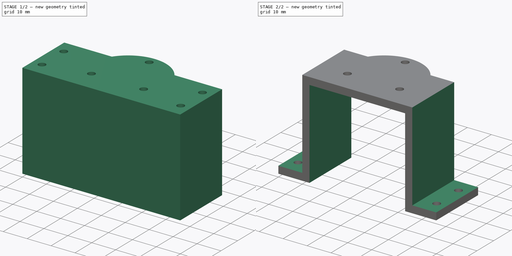
[diagram: build sequence overview — one tinted view per stage of 2, left to right]
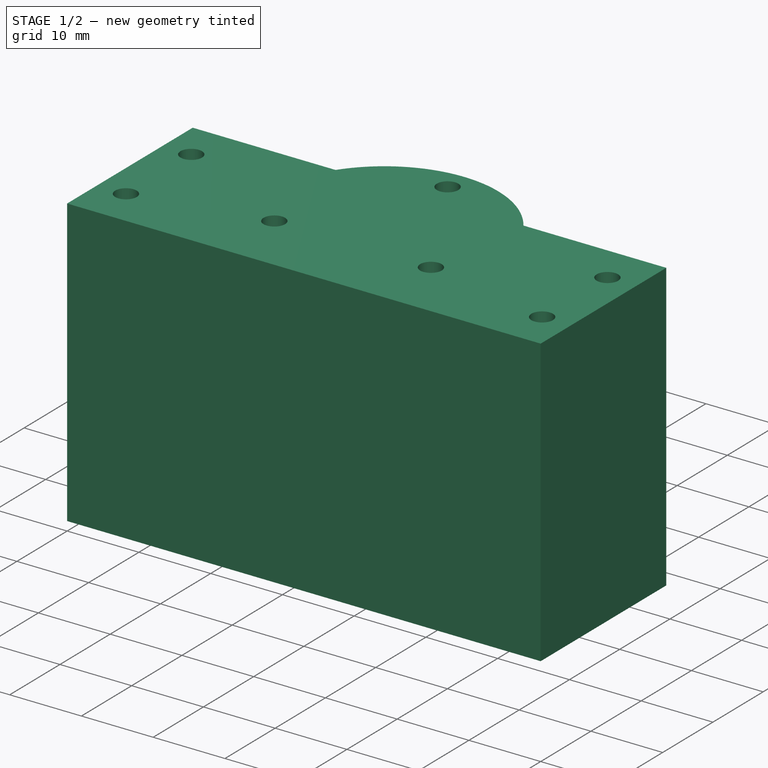
[diagram: stage 1 of 2 — iso view after this stage's code; geometry added in this stage tinted green]
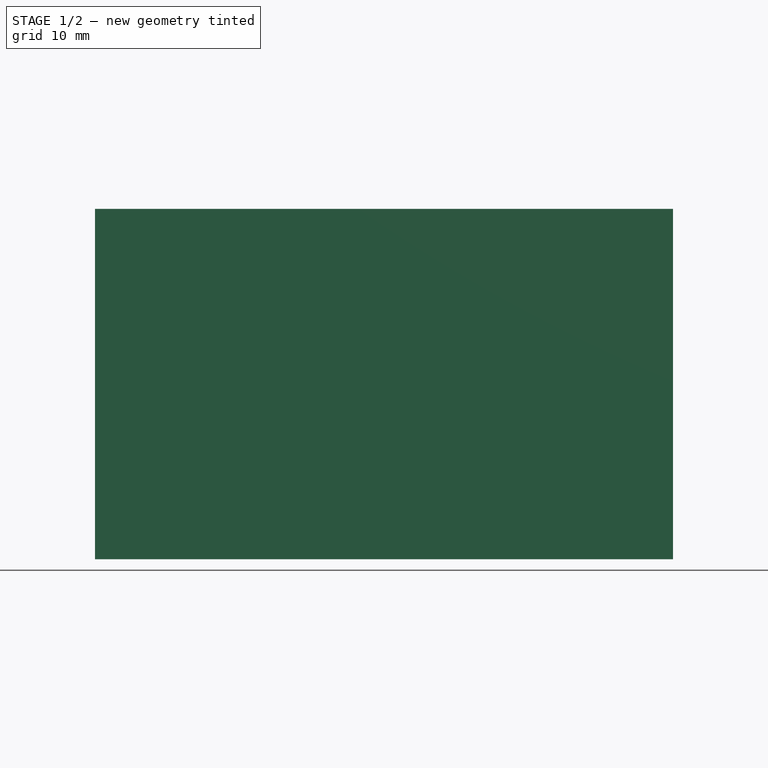
[diagram: stage 1 of 2 — front view after this stage's code; geometry added in this stage tinted green]
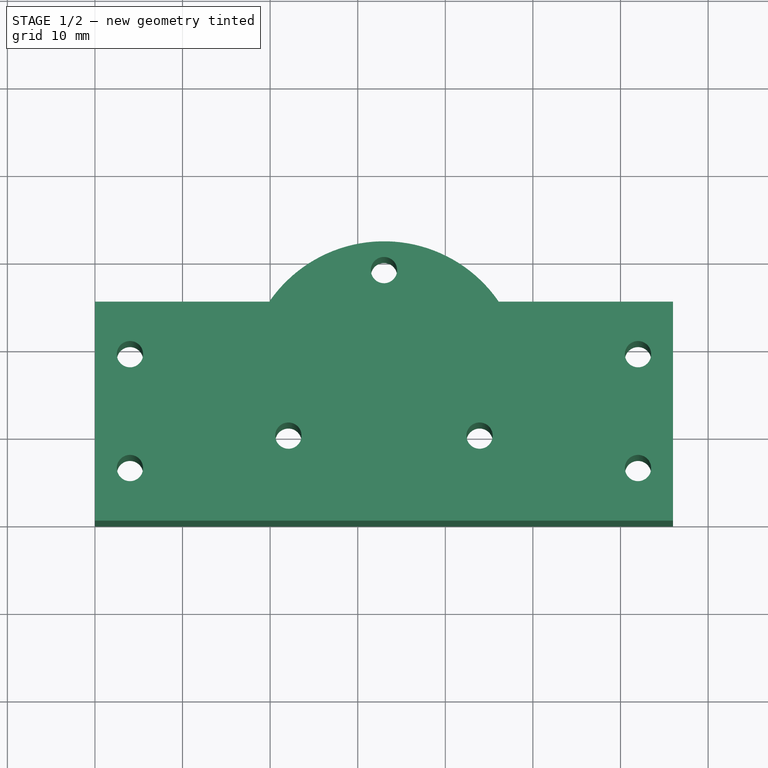
[diagram: stage 1 of 2 — top view after this stage's code; geometry added in this stage tinted green]
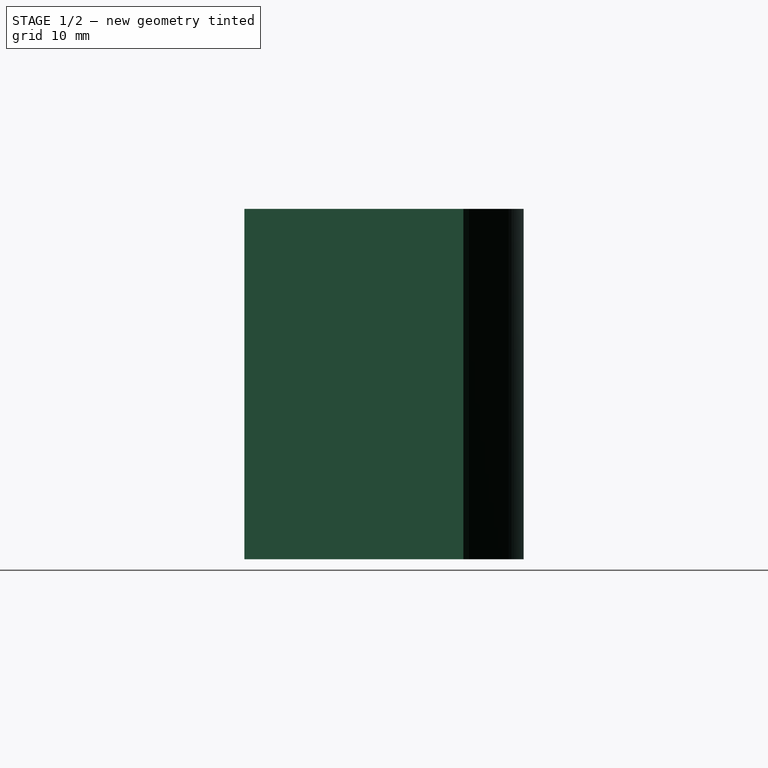
[diagram: stage 1 of 2 — right view after this stage's code; geometry added in this stage tinted green]
FCSTD DOCUMENT  (FreeCAD 0.16R6707 (Git))
Label: support_ressort
License: All rights reserved
LicenseURL: http://en.wikipedia.org/wiki/All_rights_reserved
objects: Sketcher::SketchObject×2, PartDesign::Pad×1, PartDesign::Pocket×1
note: 6 computed .brp shape members not serialized (recipe doc carries the construction recipe); baked Part::Feature solids carry a one-line shape summary decoded from their .brp

FEATURE [Sketcher::SketchObject] Sketch
  sketch-geometry (21):
    g0: GeomPoint [constr] X=0 Y=25 Z=0
    g1: GeomPoint [constr] X=66 Y=0 Z=0
    g2: GeomPoint [constr] X=66 Y=25 Z=0
    g3: GeomPoint [constr] X=33 Y=16 Z=0
    g4: Circle CenterX=33 CenterY=28.6 CenterZ=0 NormalX=0 NormalY=0 NormalZ=1 Radius=1.5
    g5: Circle CenterX=43.9119 CenterY=9.7 CenterZ=0 NormalX=0 NormalY=0 NormalZ=1 Radius=1.5
    g6: Circle CenterX=22.0881 CenterY=9.7 CenterZ=0 NormalX=0 NormalY=0 NormalZ=1 Radius=1.5
    g7: LineSegment StartX=0 StartY=25 StartZ=0 EndX=19.9057 EndY=25 EndZ=0
    g8: LineSegment StartX=66 StartY=25 StartZ=0 EndX=46.0943 EndY=25 EndZ=0
    g9: ArcOfCircle CenterX=33 CenterY=16 CenterZ=0 NormalX=0 NormalY=0 NormalZ=1 Radius=15.889 StartAngle=0.602166 EndAngle=2.53943
    g10: LineSegment StartX=0 StartY=25 StartZ=0 EndX=0 EndY=0 EndZ=0
    g11: LineSegment StartX=0 StartY=0 StartZ=0 EndX=66 EndY=0 EndZ=0
    g12: LineSegment StartX=66 StartY=0 StartZ=0 EndX=66 EndY=25 EndZ=0
    g13: GeomPoint [constr] X=4 Y=19 Z=0
    g14: GeomPoint [constr] X=4 Y=6 Z=0
    g15: GeomPoint [constr] X=62 Y=19 Z=0
    g16: GeomPoint [constr] X=62 Y=6 Z=0
    g17: Circle CenterX=4 CenterY=19 CenterZ=0 NormalX=0 NormalY=0 NormalZ=1 Radius=1.5
    g18: Circle CenterX=4 CenterY=6 CenterZ=0 NormalX=0 NormalY=0 NormalZ=1 Radius=1.5
    g19: Circle CenterX=62 CenterY=19 CenterZ=0 NormalX=0 NormalY=0 NormalZ=1 Radius=1.5
    g20: Circle CenterX=62 CenterY=6 CenterZ=0 NormalX=0 NormalY=0 NormalZ=1 Radius=1.5
  constraints (40):
    c: PointOnObject(g0,g-2)
    c: PointOnObject(g1,g-1)
    c: DistanceY(g2,g0) = 0
    c: DistanceX(g2,g1) = 0
    c: DistanceY(g0) = 25
    c: DistanceX(g-1,g1) = 66
    c: DistanceX(g3) = 33
    c: DistanceY(g3) = 16
    c: Radius(g6) = 1.5
    c: Equal(g6,g4)
    c: Equal(g6,g5)
    c: Coincident(g7,g0)
    c: Horizontal(g7)
    c: Coincident(g8,g2)
    c: Horizontal(g8)
    c: Coincident(g9,g3)
    c: Coincident(g9,g8)
    c: Coincident(g9,g7)
    c: Coincident(g10,g0)
    c: Coincident(g10,g-1)
    c: Coincident(g11,g-1)
    c: Coincident(g11,g1)
    c: Coincident(g12,g1)
    c: Coincident(g12,g2)
    c: DistanceY(g13,g0) = 6
    c: DistanceY(g14) = 6
    c: DistanceX(g13) = 4
    c: DistanceX(g14) = 4
    c: DistanceY(g15,g2) = 6
    c: DistanceY(g16) = 6
    c: DistanceX(g16,g1) = 4
    c: DistanceX(g15,g2) = 4
    c: Coincident(g17,g13)
    c: Coincident(g18,g14)
    c: Coincident(g19,g15)
    c: Coincident(g20,g16)
    c: Radius(g19) = 1.5
    c: Equal(g19,g20)
    c: Equal(g19,g18)
    c: Equal(g19,g17)
FEATURE [PartDesign::Pad] Pad
  Length = 40
  Length2 = 100
  Sketch = -> Sketch
  Type = 0
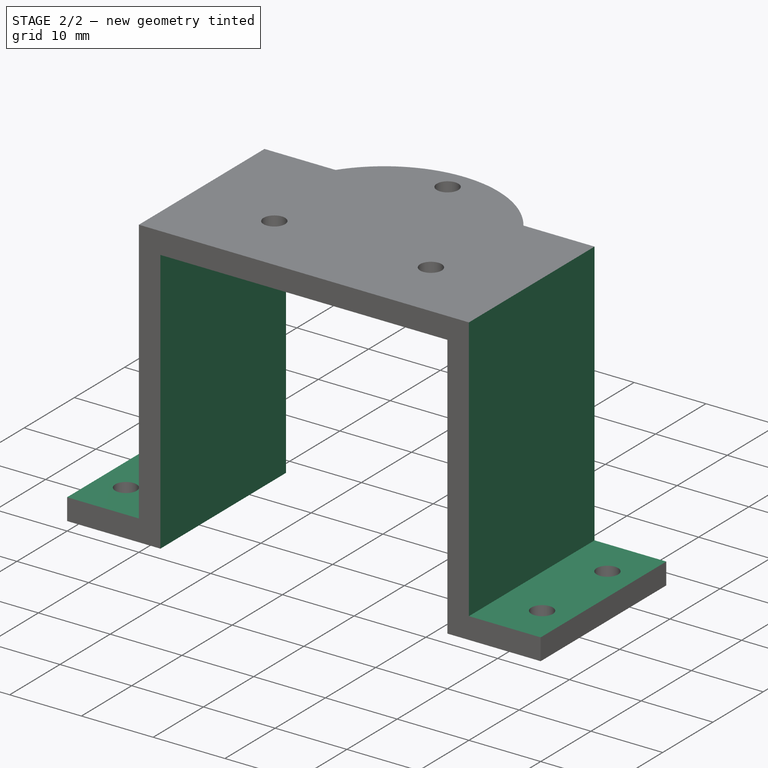
[diagram: stage 2 of 2 — iso view after this stage's code; geometry added in this stage tinted green]
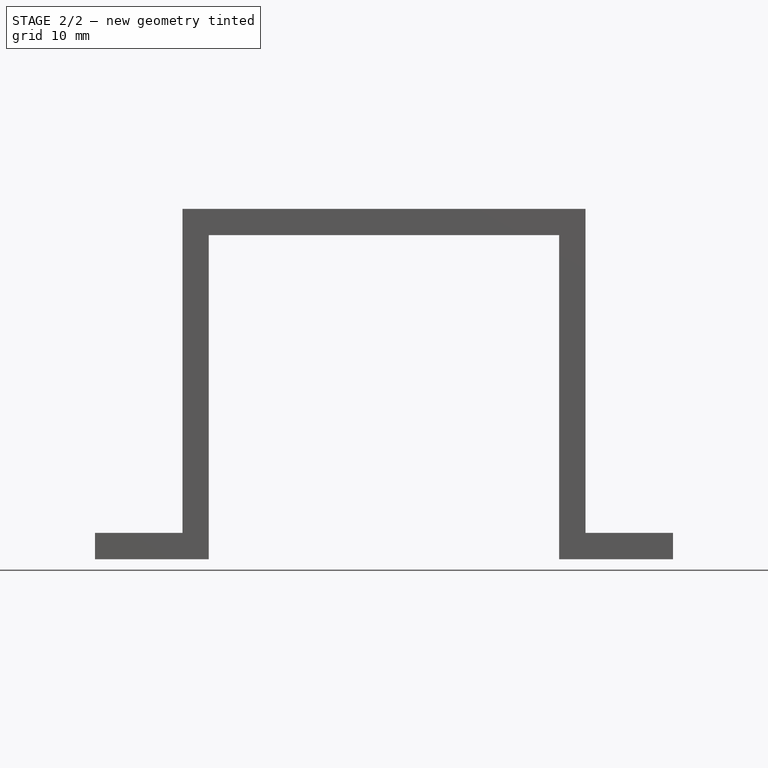
[diagram: stage 2 of 2 — front view after this stage's code; geometry added in this stage tinted green]
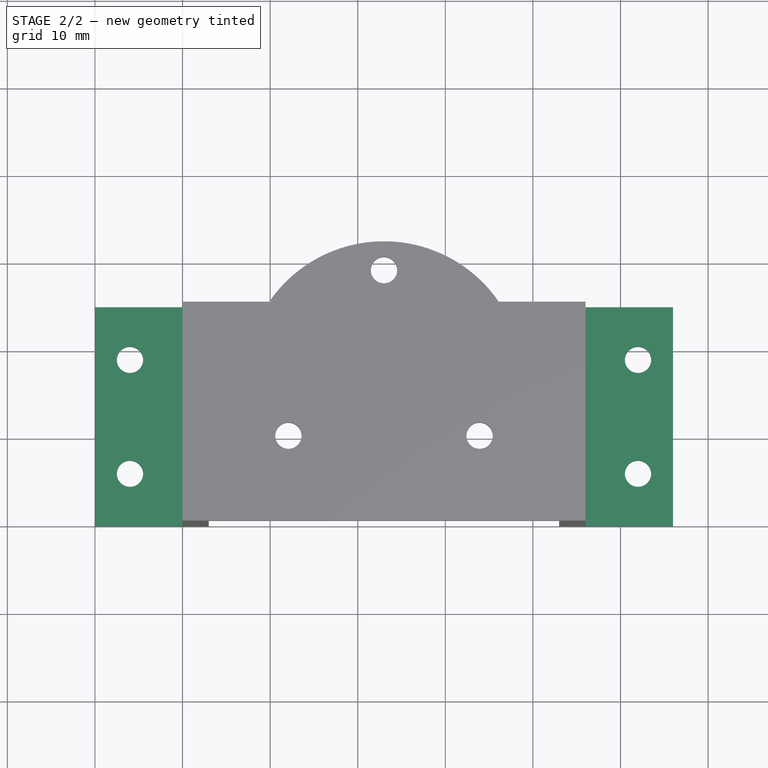
[diagram: stage 2 of 2 — top view after this stage's code; geometry added in this stage tinted green]
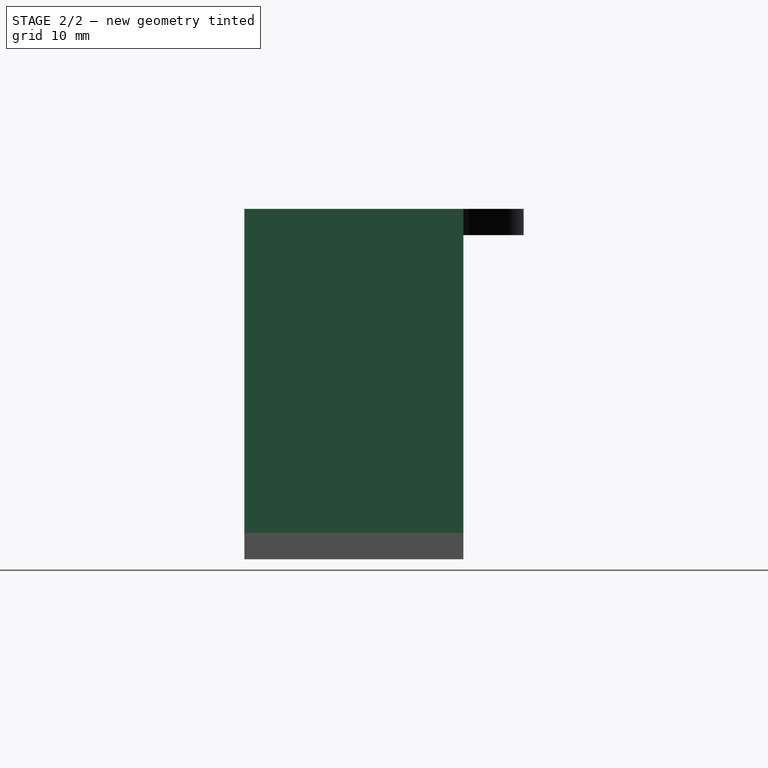
[diagram: stage 2 of 2 — right view after this stage's code; geometry added in this stage tinted green]
FEATURE [Sketcher::SketchObject] Sketch001
  Placement = pos=(0,0,0) rot=(1,0,0;1.5708rad)
  Support = -> Pad [Face5]
  sketch-geometry (15):
    g0: GeomPoint [constr] X=0 Y=3 Z=0
    g1: GeomPoint [constr] X=66 Y=3 Z=0
    g2: GeomPoint [constr] X=13 Y=0 Z=0
    g3: LineSegment StartX=0 StartY=3 StartZ=0 EndX=10 EndY=3 EndZ=0
    g4: LineSegment StartX=10 StartY=3 StartZ=0 EndX=10 EndY=40 EndZ=0
    g5: LineSegment StartX=10 StartY=40 StartZ=0 EndX=0 EndY=40 EndZ=0
    g6: LineSegment StartX=0 StartY=40 StartZ=0 EndX=0 EndY=3 EndZ=0
    g7: LineSegment StartX=13 StartY=0 StartZ=0 EndX=53 EndY=0 EndZ=0
    g8: LineSegment StartX=53 StartY=0 StartZ=0 EndX=53 EndY=37 EndZ=0
    g9: LineSegment StartX=53 StartY=37 StartZ=0 EndX=13 EndY=37 EndZ=0
    g10: LineSegment StartX=13 StartY=37 StartZ=0 EndX=13 EndY=0 EndZ=0
    g11: LineSegment StartX=66 StartY=3 StartZ=0 EndX=56 EndY=3 EndZ=0
    g12: LineSegment StartX=56 StartY=3 StartZ=0 EndX=56 EndY=40 EndZ=0
    g13: LineSegment StartX=56 StartY=40 StartZ=0 EndX=66 EndY=40 EndZ=0
    g14: LineSegment StartX=66 StartY=40 StartZ=0 EndX=66 EndY=3 EndZ=0
  constraints (39):
    c: PointOnObject(g0,g-2)
    c: DistanceY(g0) = 3
    c: PointOnObject(g2,g-1)
    c: DistanceY(g1) = 3
    c: DistanceX(g2) = 13
    c: DistanceX(g1) = 66
    c: Coincident(g3,g4)
    c: Coincident(g4,g5)
    c: Coincident(g5,g6)
    c: Coincident(g6,g3)
    c: Horizontal(g3)
    c: Horizontal(g5)
    c: Vertical(g4)
    c: Vertical(g6)
    c: Coincident(g3,g0)
    c: Coincident(g7,g8)
    c: Coincident(g8,g9)
    c: Coincident(g9,g10)
    c: Coincident(g10,g7)
    c: Horizontal(g7)
    c: Horizontal(g9)
    c: Vertical(g8)
    c: Vertical(g10)
    c: Coincident(g7,g2)
    c: Coincident(g11,g12)
    c: Coincident(g12,g13)
    c: Coincident(g13,g14)
    c: Coincident(g14,g11)
    c: Horizontal(g11)
    c: Horizontal(g13)
    c: Vertical(g12)
    c: Vertical(g14)
    c: Coincident(g11,g1)
    c: Distance(g13) = 10
    c: Distance(g5) = 10
    c: Distance(g4) = 37
    c: Distance(g12) = 37
    c: DistanceY(g8,g8) = 37
    c: Distance(g9) = 40
FEATURE [PartDesign::Pocket] Pocket
  Length = 5
  Sketch = -> Sketch001
  Type = 1
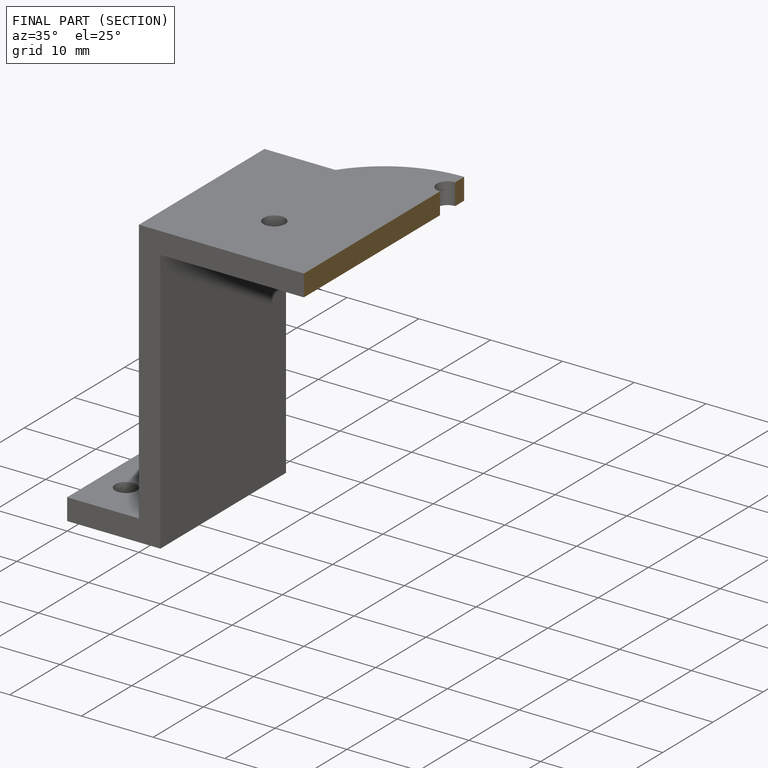
[diagram: finished part — half-section view (interior)]
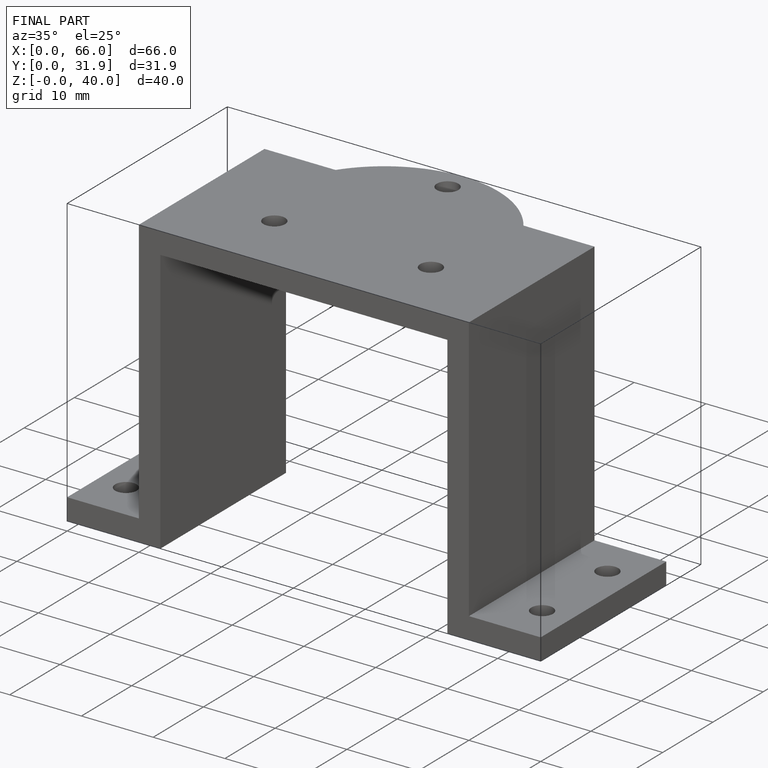
[diagram: finished part — iso view with bounding-box wireframe]
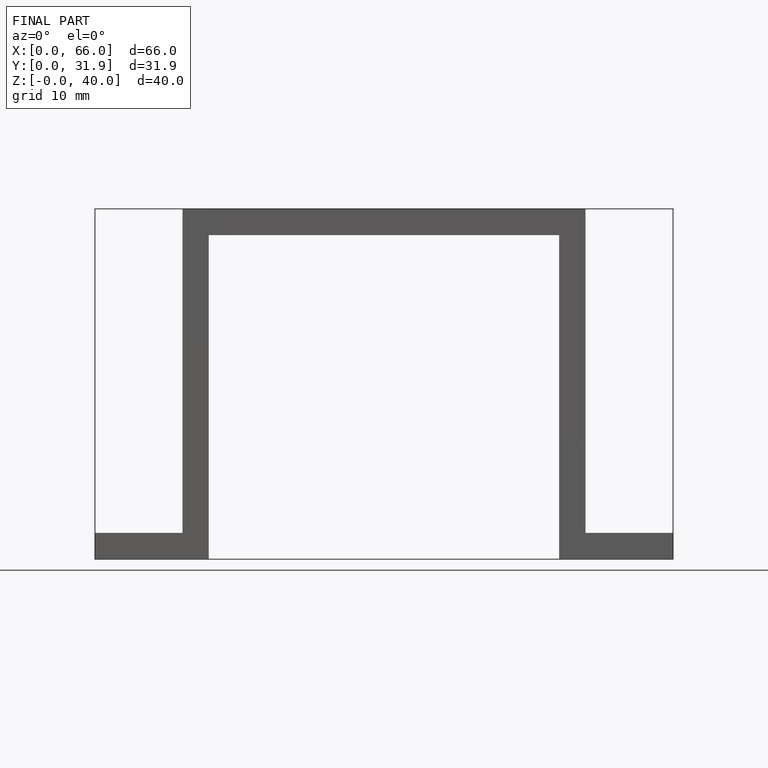
[diagram: finished part — front view with bounding-box wireframe]
